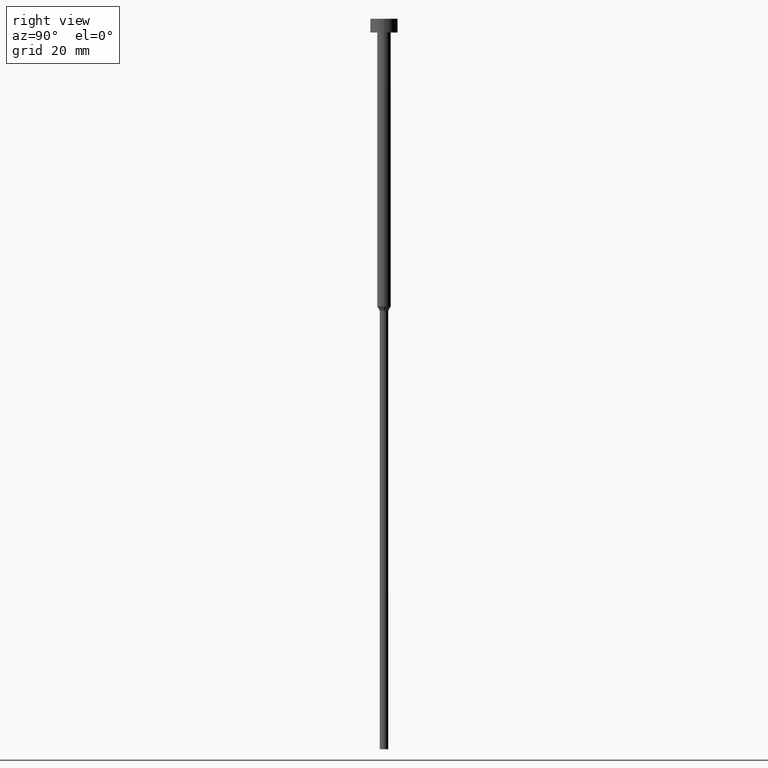
[diagram: clean part render]
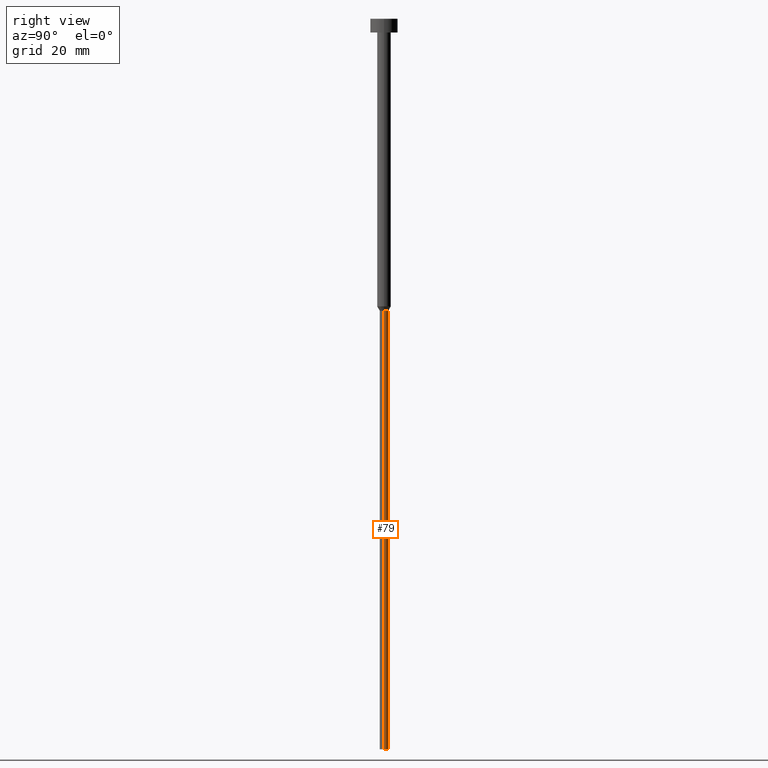
[diagram: same view with one face highlighted and labeled with its STEP entity id]
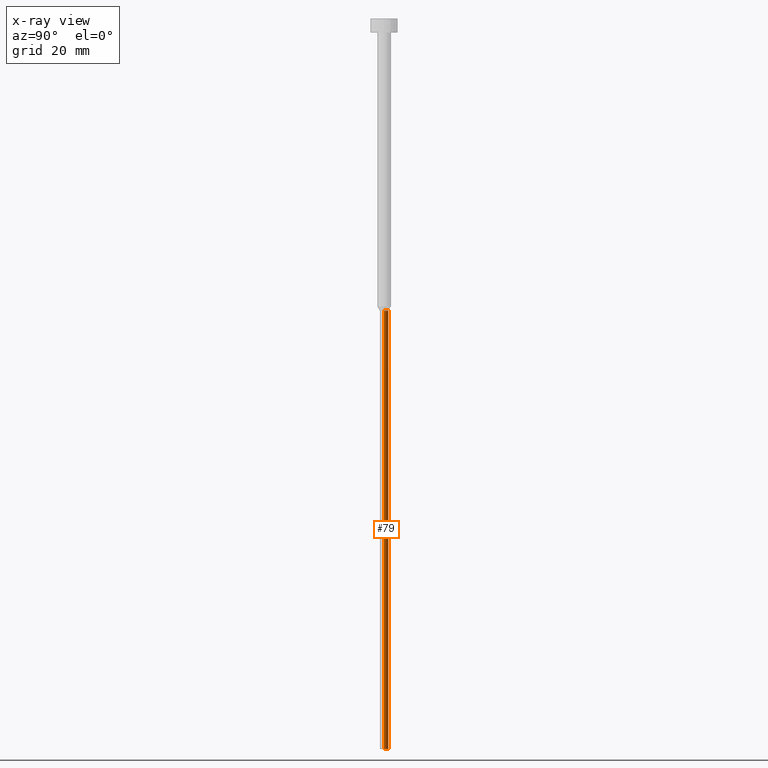
[diagram: x-ray of the same camera — body ghosted, the highlighted face saturated]
A machine part, right view. The second image highlights one B-rep face of the part: STEP entity #79.
The next image is the same camera in x-ray: the body ghosted, the highlighted face saturated — about 0% of this face is hidden behind the body in this view.
In plain terms, the highlighted cylindrical surface (edge-blend (fillet) strip) has radius 0.95 mm, axis along (-0, -0, 1).
Its self-contained STEP definition (entity closure, byte-faithful):
#6 = VERTEX_POINT ( 'NONE', #338 ) ;
#7 = CARTESIAN_POINT ( 'NONE',  ( 0.000000000000000000, 0.000000000000000000, 0.000000000000000000 ) ) ;
#11 = CARTESIAN_POINT ( 'NONE',  ( 0.000000000000000000, 0.000000000000000000, -63.95262794416288443 ) ) ;
#16 = DIRECTION ( 'NONE',  ( -0.000000000000000000, -0.000000000000000000, 1.000000000000000000 ) ) ;
#23 = LINE ( 'NONE', #351, #97 ) ;
#30 = ORIENTED_EDGE ( 'NONE', *, *, #39, .T. ) ;
#32 = DIRECTION ( 'NONE',  ( 1.000000000000000000, 0.000000000000000000, 0.000000000000000000 ) ) ;
#36 = DIRECTION ( 'NONE',  ( 1.000000000000000000, 0.000000000000000000, 0.000000000000000000 ) ) ;
#38 = CYLINDRICAL_SURFACE ( 'NONE', #191, 0.9499999999999998446 ) ;
#39 = EDGE_CURVE ( 'NONE', #41, #6, #173, .T. ) ;
#41 = VERTEX_POINT ( 'NONE', #167 ) ;
#57 = CIRCLE ( 'NONE', #115, 0.9499999999999998446 ) ;
#62 = DIRECTION ( 'NONE',  ( -0.000000000000000000, -0.000000000000000000, 1.000000000000000000 ) ) ;
#79 = ADVANCED_FACE ( 'NONE', ( #145 ), #38, .T. ) ;
#91 = CARTESIAN_POINT ( 'NONE',  ( 0.9499999999999998446, 0.000000000000000000, -63.95262794416288443 ) ) ;
#95 = ORIENTED_EDGE ( 'NONE', *, *, #117, .T. ) ;
#97 = VECTOR ( 'NONE', #16, 1000.000000000000000 ) ;
#110 = EDGE_CURVE ( 'NONE', #134, #6, #120, .T. ) ;
#115 = AXIS2_PLACEMENT_3D ( 'NONE', #254, #282, #36 ) ;
#117 = EDGE_CURVE ( 'NONE', #278, #41, #57, .T. ) ;
#120 = CIRCLE ( 'NONE', #274, 0.9499999999999998446 ) ;
#134 = VERTEX_POINT ( 'NONE', #91 ) ;
#145 = FACE_OUTER_BOUND ( 'NONE', #247, .T. ) ;
#167 = CARTESIAN_POINT ( 'NONE',  ( -0.9499999999999998446, 1.163414459189985436E-16, -160.0000000000000000 ) ) ;
#169 = DIRECTION ( 'NONE',  ( 1.000000000000000000, 0.000000000000000000, 0.000000000000000000 ) ) ;
#173 = LINE ( 'NONE', #309, #334 ) ;
#188 = EDGE_CURVE ( 'NONE', #278, #134, #23, .T. ) ;
#191 = AXIS2_PLACEMENT_3D ( 'NONE', #7, #280, #32 ) ;
#222 = ORIENTED_EDGE ( 'NONE', *, *, #188, .F. ) ;
#232 = CARTESIAN_POINT ( 'NONE',  ( 0.9499999999999998446, 0.000000000000000000, -160.0000000000000000 ) ) ;
#247 = EDGE_LOOP ( 'NONE', ( #95, #30, #331, #222 ) ) ;
#249 = DIRECTION ( 'NONE',  ( -0.000000000000000000, -0.000000000000000000, 1.000000000000000000 ) ) ;
#254 = CARTESIAN_POINT ( 'NONE',  ( 0.000000000000000000, 0.000000000000000000, -160.0000000000000000 ) ) ;
#274 = AXIS2_PLACEMENT_3D ( 'NONE', #11, #62, #169 ) ;
#278 = VERTEX_POINT ( 'NONE', #232 ) ;
#280 = DIRECTION ( 'NONE',  ( -0.000000000000000000, -0.000000000000000000, 1.000000000000000000 ) ) ;
#282 = DIRECTION ( 'NONE',  ( -0.000000000000000000, -0.000000000000000000, 1.000000000000000000 ) ) ;
#309 = CARTESIAN_POINT ( 'NONE',  ( -0.9499999999999998446, 1.163414459189985436E-16, 0.000000000000000000 ) ) ;
#331 = ORIENTED_EDGE ( 'NONE', *, *, #110, .F. ) ;
#334 = VECTOR ( 'NONE', #249, 1000.000000000000000 ) ;
#338 = CARTESIAN_POINT ( 'NONE',  ( -0.9499999999999998446, 1.163414459189985436E-16, -63.95262794416288443 ) ) ;
#351 = CARTESIAN_POINT ( 'NONE',  ( 0.9499999999999998446, 0.000000000000000000, 0.000000000000000000 ) ) ;